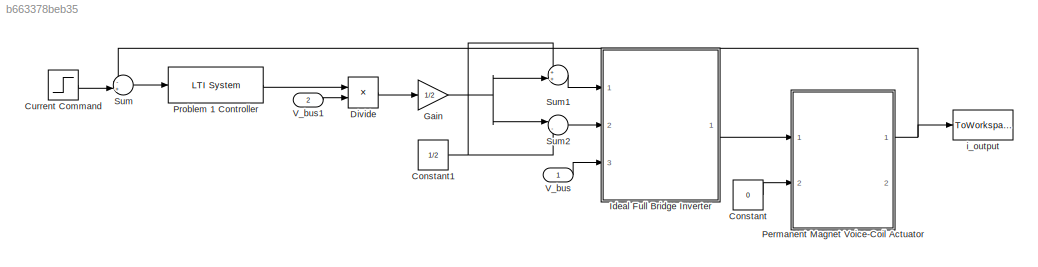
MODEL slx_b663378beb35
KIND model
CONFIG AbsTol = auto
CONFIG FixedStep = auto
CONFIG MaxStep = auto
CONFIG MinStep = auto
CONFIG RelTol = 1e-3
CONFIG SampleTimeConstraint = Unconstrained
CONFIG Solver = VariableStepAuto
CONFIG SolverMode = Auto
CONFIG SolverName = VariableStepAuto
CONFIG StartTime = 0
CONFIG StopTime = 2
BLOCK [Constant] Constant
  Value = 0
BLOCK [Constant] Constant1
  Value = 1/2
BLOCK [Step] Current Command 
  After = 5
  SampleTime = 0
BLOCK [Product] Divide
  InputSameDT = off
  Inputs = */
  OutDataTypeStr = Inherit: Inherit via internal rule
  Ports = [2, 1]
  RndMeth = Floor
  SaturateOnIntegerOverflow = off
BLOCK [Gain] Gain
  Gain = 1/2
  OutDataTypeStr = Inherit: Inherit via internal rule
  ParamDataTypeStr = Inherit: Inherit via internal rule
  SaturateOnIntegerOverflow = off
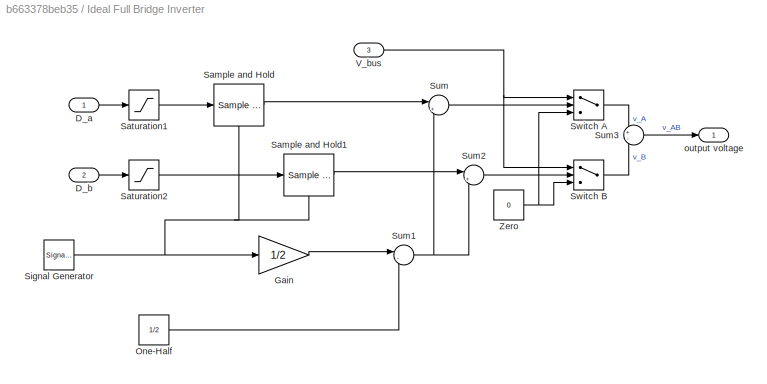
BLOCK [SubSystem] Ideal Full Bridge Inverter 
  Ports = [3, 1]
  RequestExecContextInheritance = off
  Variant = off
BLOCK [Inport] Ideal Full Bridge Inverter /D_a
  IconDisplay = Port number
BLOCK [Inport] Ideal Full Bridge Inverter /D_b
  IconDisplay = Port number
  Port = 2
BLOCK [Gain] Ideal Full Bridge Inverter /Gain
  Gain = 1/2
BLOCK [Constant] Ideal Full Bridge Inverter /One-Half
  Value = 1/2
BLOCK [Reference] Ideal Full Bridge Inverter /Sample and Hold  REF=dspsigops/Sample
and Hold
  Ports = [1, 1, 0, 1]
  SourceBlock = dspsigops/Sample\nand Hold
  SourceType = Sample and Hold
BLOCK [Reference] Ideal Full Bridge Inverter /Sample and Hold1  REF=dspsigops/Sample
and Hold
  Ports = [1, 1, 0, 1]
  SourceBlock = dspsigops/Sample\nand Hold
  SourceType = Sample and Hold
BLOCK [Saturate] Ideal Full Bridge Inverter /Saturation1
  InputPortMap = u0
  LowerLimit = 0
  Ports = [1, 1]
  UpperLimit = 1
BLOCK [Saturate] Ideal Full Bridge Inverter /Saturation2
  InputPortMap = u0
  LowerLimit = 0
  Ports = [1, 1]
  UpperLimit = 1
BLOCK [SignalGenerator] Ideal Full Bridge Inverter /Signal Generator
  Frequency = f_sw
  Ports = [0, 1]
  WaveForm = sawtooth
BLOCK [Sum] Ideal Full Bridge Inverter /Sum
  IconShape = round
  InputSameDT = off
  Inputs = |+-
  OutDataTypeStr = Inherit: Inherit via internal rule
  Ports = [2, 1]
BLOCK [Sum] Ideal Full Bridge Inverter /Sum1
  IconShape = round
  InputSameDT = off
  Inputs = |-+
  OutDataTypeStr = Inherit: Inherit via internal rule
  Ports = [2, 1]
BLOCK [Sum] Ideal Full Bridge Inverter /Sum2
  IconShape = round
  InputSameDT = off
  Inputs = |+-
  OutDataTypeStr = Inherit: Inherit via internal rule
  Ports = [2, 1]
BLOCK [Sum] Ideal Full Bridge Inverter /Sum3
  IconShape = round
  InputSameDT = off
  Inputs = +-
  OutDataTypeStr = Inherit: Inherit via internal rule
  Ports = [2, 1]
BLOCK [Switch] Ideal Full Bridge Inverter /Switch A
  InputSameDT = off
BLOCK [Switch] Ideal Full Bridge Inverter /Switch B
  InputSameDT = off
BLOCK [Inport] Ideal Full Bridge Inverter /V_bus
  IconDisplay = Port number
  Port = 3
BLOCK [Constant] Ideal Full Bridge Inverter /Zero
  Value = 0
BLOCK [Outport] Ideal Full Bridge Inverter /output voltage
  IconDisplay = Port number
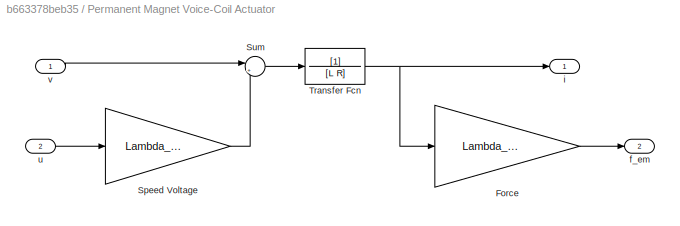
BLOCK [SubSystem] Permanent Magnet Voice-Coil Actuator
  Ports = [2, 2]
  RequestExecContextInheritance = off
  Variant = off
BLOCK [Gain] Permanent Magnet Voice-Coil Actuator/Force
  Gain = Lambda_pm0oell
  OutDataTypeStr = Inherit: Inherit via internal rule
  ParamDataTypeStr = Inherit: Inherit via internal rule
  SaturateOnIntegerOverflow = off
BLOCK [Gain] Permanent Magnet Voice-Coil Actuator/Speed Voltage
  Gain = Lambda_pm0oell
  OutDataTypeStr = Inherit: Inherit via internal rule
  ParamDataTypeStr = Inherit: Inherit via internal rule
  SaturateOnIntegerOverflow = off
BLOCK [Sum] Permanent Magnet Voice-Coil Actuator/Sum
  IconShape = round
  InputSameDT = off
  Inputs = |+-
  OutDataTypeStr = Inherit: Inherit via internal rule
  Ports = [2, 1]
  SaturateOnIntegerOverflow = off
BLOCK [TransferFcn] Permanent Magnet Voice-Coil Actuator/Transfer Fcn
  Denominator = [L R]
BLOCK [Outport] Permanent Magnet Voice-Coil Actuator/f_em
  IconDisplay = Port number
  Port = 2
BLOCK [Outport] Permanent Magnet Voice-Coil Actuator/i
  IconDisplay = Port number
BLOCK [Inport] Permanent Magnet Voice-Coil Actuator/u
  IconDisplay = Port number
  Port = 2
BLOCK [Inport] Permanent Magnet Voice-Coil Actuator/v
  IconDisplay = Port number
BLOCK [Reference] Problem 1 Controller  REF=cstblocks/LTI System
  Ports = [1, 1]
  SourceBlock = cstblocks/LTI System
  SourceType = LTI Block
BLOCK [Sum] Sum
  IconShape = round
  InputSameDT = off
  Inputs = -+|
  OutDataTypeStr = Inherit: Inherit via internal rule
  Ports = [2, 1]
  SaturateOnIntegerOverflow = off
BLOCK [Sum] Sum1
  IconShape = round
  InputSameDT = off
  Inputs = ++|
  OutDataTypeStr = Inherit: Inherit via internal rule
  Ports = [2, 1]
  SaturateOnIntegerOverflow = off
BLOCK [Sum] Sum2
  IconShape = round
  InputSameDT = off
  Inputs = |-+
  OutDataTypeStr = Inherit: Inherit via internal rule
  Ports = [2, 1]
  SaturateOnIntegerOverflow = off
BLOCK [Inport] V_bus
  IconDisplay = Port number
BLOCK [Inport] V_bus1
  IconDisplay = Port number
  Port = 2
BLOCK [ToWorkspace] i_output
  FixptAsFi = on
  MaxDataPoints = inf
  Ports = [1]
  SampleTime = -1
  Save2DSignal = 3-D array (concatenate along third dimension)
  VariableName = i_output
NET Constant1:1 -> Sum1:1, Sum2:2
LINE Constant:1 -> Permanent Magnet Voice-Coil Actuator:2
LINE Current Command :1 -> Sum:2
LINE Divide:1 -> Gain:1
NET Gain:1 -> Sum1:2, Sum2:1
LINE Ideal Full Bridge Inverter /D_a:1 -> Ideal Full Bridge Inverter /Saturation1:1
LINE Ideal Full Bridge Inverter /D_b:1 -> Ideal Full Bridge Inverter /Saturation2:1
LINE Ideal Full Bridge Inverter /Gain:1 -> Ideal Full Bridge Inverter /Sum1:1
LINE Ideal Full Bridge Inverter /One-Half:1 -> Ideal Full Bridge Inverter /Sum1:2
LINE Ideal Full Bridge Inverter /Sample and Hold1:1 -> Ideal Full Bridge Inverter /Sum2:1
LINE Ideal Full Bridge Inverter /Sample and Hold:1 -> Ideal Full Bridge Inverter /Sum:1
LINE Ideal Full Bridge Inverter /Saturation1:1 -> Ideal Full Bridge Inverter /Sample and Hold:1
LINE Ideal Full Bridge Inverter /Saturation2:1 -> Ideal Full Bridge Inverter /Sample and Hold1:1
NET Ideal Full Bridge Inverter /Signal Generator:1 -> Ideal Full Bridge Inverter /Gain:1, Ideal Full Bridge Inverter /Sample and Hold1:trigger, Ideal Full Bridge Inverter /Sample and Hold:trigger
NET Ideal Full Bridge Inverter /Sum1:1 -> Ideal Full Bridge Inverter /Sum2:2, Ideal Full Bridge Inverter /Sum:2
LINE Ideal Full Bridge Inverter /Sum2:1 -> Ideal Full Bridge Inverter /Switch B:2
LINE Ideal Full Bridge Inverter /Sum3:1 -> Ideal Full Bridge Inverter /output voltage:1
LINE Ideal Full Bridge Inverter /Sum:1 -> Ideal Full Bridge Inverter /Switch A:2
LINE Ideal Full Bridge Inverter /Switch A:1 -> Ideal Full Bridge Inverter /Sum3:1
LINE Ideal Full Bridge Inverter /Switch B:1 -> Ideal Full Bridge Inverter /Sum3:2
NET Ideal Full Bridge Inverter /V_bus:1 -> Ideal Full Bridge Inverter /Switch A:1, Ideal Full Bridge Inverter /Switch B:1
NET Ideal Full Bridge Inverter /Zero:1 -> Ideal Full Bridge Inverter /Switch A:3, Ideal Full Bridge Inverter /Switch B:3
LINE Ideal Full Bridge Inverter :1 -> Permanent Magnet Voice-Coil Actuator:1
LINE Permanent Magnet Voice-Coil Actuator/Force:1 -> Permanent Magnet Voice-Coil Actuator/f_em:1
LINE Permanent Magnet Voice-Coil Actuator/Speed Voltage:1 -> Permanent Magnet Voice-Coil Actuator/Sum:2
LINE Permanent Magnet Voice-Coil Actuator/Sum:1 -> Permanent Magnet Voice-Coil Actuator/Transfer Fcn:1
NET Permanent Magnet Voice-Coil Actuator/Transfer Fcn:1 -> Permanent Magnet Voice-Coil Actuator/Force:1, Permanent Magnet Voice-Coil Actuator/i:1
LINE Permanent Magnet Voice-Coil Actuator/u:1 -> Permanent Magnet Voice-Coil Actuator/Speed Voltage:1
LINE Permanent Magnet Voice-Coil Actuator/v:1 -> Permanent Magnet Voice-Coil Actuator/Sum:1
NET Permanent Magnet Voice-Coil Actuator:1 -> Sum:1, i_output:1
LINE Problem 1 Controller:1 -> Divide:1
LINE Sum1:1 -> Ideal Full Bridge Inverter :1
LINE Sum2:1 -> Ideal Full Bridge Inverter :2
LINE Sum:1 -> Problem 1 Controller:1
LINE V_bus1:1 -> Divide:2
LINE V_bus:1 -> Ideal Full Bridge Inverter :3
note: NET lines group one-source signal fan-out (src -> all destinations, sorted); 1:1 wires keep LINE
